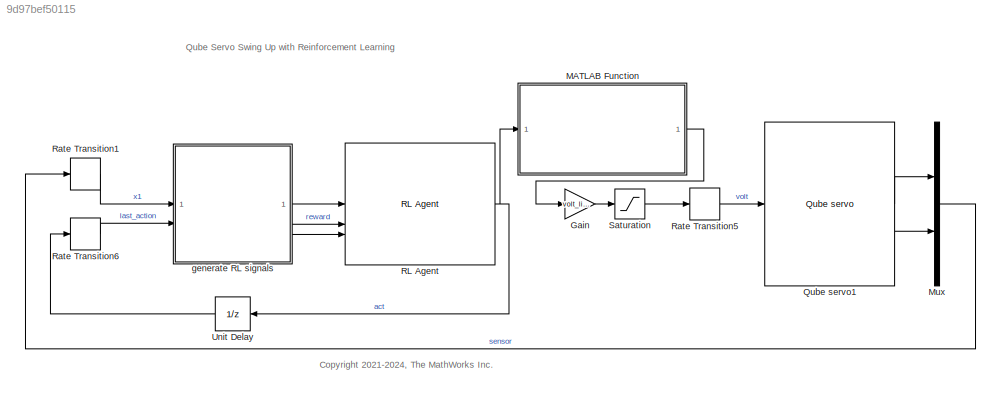
MODEL slx_9d97bef50115
KIND model
CONFIG AbsTol = 1e-3
CONFIG EnableMultiTasking = off
CONFIG FixedStep = auto
CONFIG MaxStep = auto
CONFIG MinStep = auto
CONFIG RelTol = 1e-3
CONFIG SampleTimeConstraint = Unconstrained
CONFIG SolverName = ode23t
CONFIG StartTime = 0.0
CONFIG StopTime = 10.0
BLOCK [Gain] Gain
  Gain = volt_limit
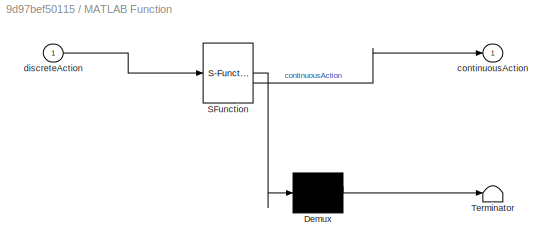
BLOCK [SubSystem] MATLAB Function
  ErrorFcn = Stateflow.Translate.translate
  PermitHierarchicalResolution = ExplicitOnly
  SFBlockType = MATLAB Function
  TreatAsAtomicUnit = on
BLOCK [Demux] MATLAB Function/ Demux 
  Outputs = 1
BLOCK [S-Function] MATLAB Function/ SFunction 
  EnableBusSupport = off
  FunctionName = sf_sfun
  PortCounts = [1 2]
  SFcnIsStateOwnerBlock = off
  SFunctionDeploymentMode = off
  Tag = Stateflow S-Function 1
BLOCK [Terminator] MATLAB Function/ Terminator 
BLOCK [Outport] MATLAB Function/continuousAction
BLOCK [Inport] MATLAB Function/discreteAction
BLOCK [Mux] Mux
  DisplayOption = bar
  Inputs = 2
BLOCK [Reference] Qube servo1  REF=QuanserQube/Qube servo
  SourceBlock = QuanserQube/Qube servo
  SourceType = Qube servo 2 model by Simscape
BLOCK [Reference] RL Agent  REF=rllib/RL Agent
  SourceBlock = rllib/RL Agent
  SourceType = RL Agent
BLOCK [RateTransition] Rate Transition1
  OutPortSampleTime = Ts
BLOCK [RateTransition] Rate Transition5
BLOCK [RateTransition] Rate Transition6
  OutPortSampleTime = Ts
BLOCK [Saturate] Saturation
  LowerLimit = -volt_limit
  UpperLimit = volt_limit
BLOCK [UnitDelay] Unit Delay
  HasFrameUpgradeWarning = on
  SampleTime = -1
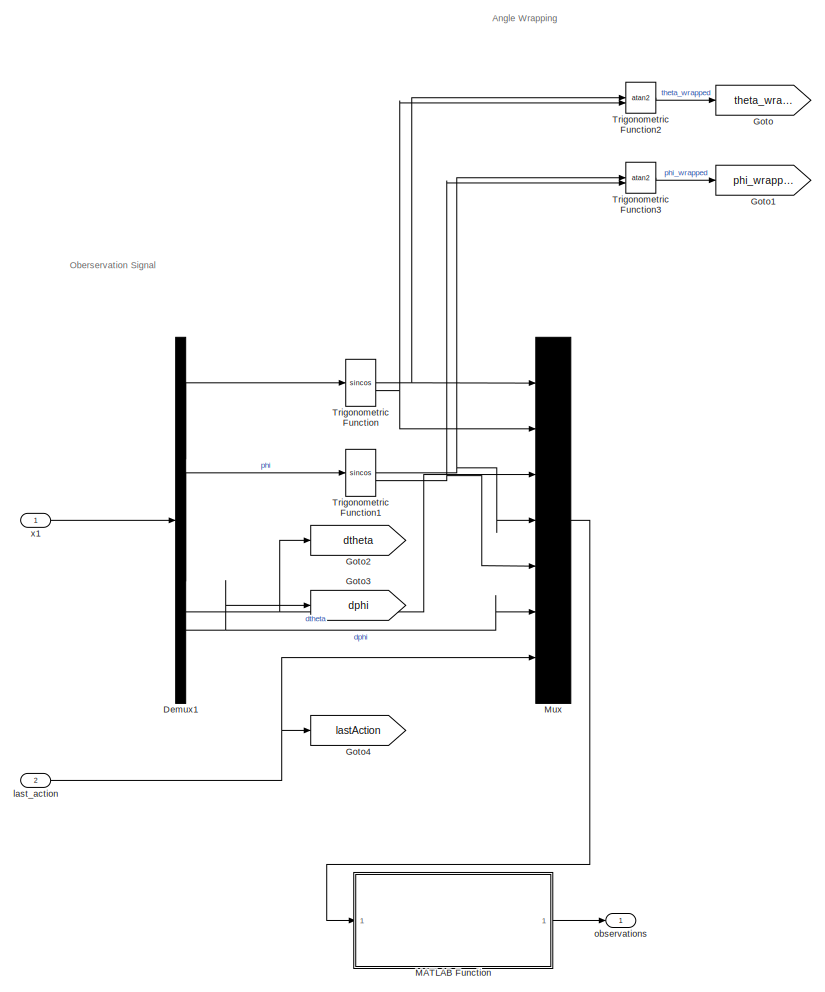
[diagram: generate RL signals - part 1/2, left side, full height]
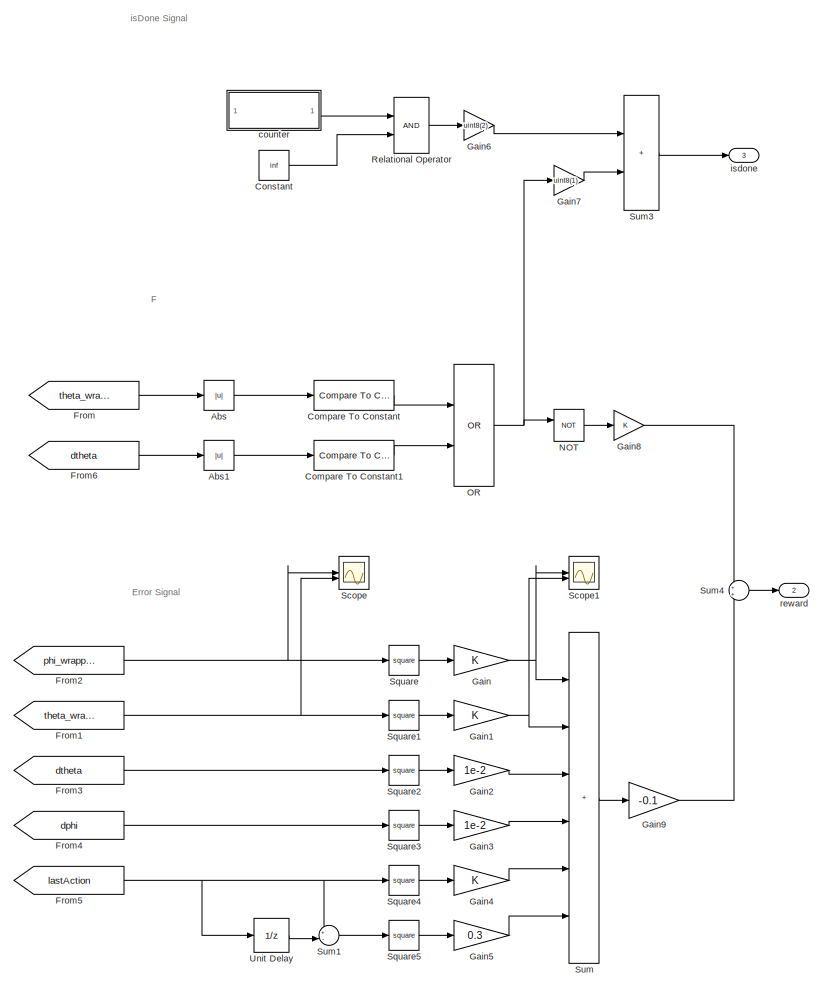
[diagram: generate RL signals - part 2/2, right side, full height]
BLOCK [SubSystem] generate RL signals
BLOCK [Abs] generate RL signals/Abs
  SaturateOnIntegerOverflow = off
BLOCK [Abs] generate RL signals/Abs1
  SaturateOnIntegerOverflow = off
BLOCK [Reference] generate RL signals/Compare To Constant  REF=simulink/Logic and Bit
Operations/Compare
To Constant
  SourceBlock = simulink/Logic and Bit\nOperations/Compare\nTo Constant
  SourceType = Compare To Constant
BLOCK [Reference] generate RL signals/Compare To Constant1  REF=simulink/Logic and Bit
Operations/Compare
To Constant
  SourceBlock = simulink/Logic and Bit\nOperations/Compare\nTo Constant
  SourceType = Compare To Constant
BLOCK [Constant] generate RL signals/Constant
  Value = inf
BLOCK [Demux] generate RL signals/Demux1
BLOCK [From] generate RL signals/From
  GotoTag = theta_wrapped
BLOCK [From] generate RL signals/From1
  GotoTag = theta_wrapped
BLOCK [From] generate RL signals/From2
  GotoTag = phi_wrapped
BLOCK [From] generate RL signals/From3
  GotoTag = dtheta
BLOCK [From] generate RL signals/From4
  GotoTag = dphi
BLOCK [From] generate RL signals/From5
  GotoTag = lastAction
BLOCK [From] generate RL signals/From6
  GotoTag = dtheta
BLOCK [Gain] generate RL signals/Gain
BLOCK [Gain] generate RL signals/Gain1
BLOCK [Gain] generate RL signals/Gain2
  Gain = 1e-2
BLOCK [Gain] generate RL signals/Gain3
  Gain = 1e-2
BLOCK [Gain] generate RL signals/Gain4
BLOCK [Gain] generate RL signals/Gain5
  Gain = 0.3
BLOCK [Gain] generate RL signals/Gain6
  Gain = uint8(2)
  OutDataTypeStr = uint8
BLOCK [Gain] generate RL signals/Gain7
  Gain = uint8(1)
  OutDataTypeStr = uint8
BLOCK [Gain] generate RL signals/Gain8
  OutDataTypeStr = double
BLOCK [Gain] generate RL signals/Gain9
  Gain = -0.1
BLOCK [Goto] generate RL signals/Goto
  GotoTag = theta_wrapped
BLOCK [Goto] generate RL signals/Goto1
  GotoTag = phi_wrapped
BLOCK [Goto] generate RL signals/Goto2
  GotoTag = dtheta
BLOCK [Goto] generate RL signals/Goto3
  GotoTag = dphi
BLOCK [Goto] generate RL signals/Goto4
  GotoTag = lastAction
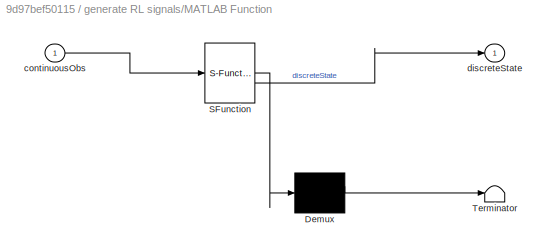
BLOCK [SubSystem] generate RL signals/MATLAB Function
  ErrorFcn = Stateflow.Translate.translate
  PermitHierarchicalResolution = ExplicitOnly
  SFBlockType = MATLAB Function
  TreatAsAtomicUnit = on
BLOCK [Demux] generate RL signals/MATLAB Function/ Demux 
  Outputs = 1
BLOCK [S-Function] generate RL signals/MATLAB Function/ SFunction 
  EnableBusSupport = off
  FunctionName = sf_sfun
  PortCounts = [1 2]
  SFcnIsStateOwnerBlock = off
  SFunctionDeploymentMode = off
  Tag = Stateflow S-Function 2
BLOCK [Terminator] generate RL signals/MATLAB Function/ Terminator 
BLOCK [Inport] generate RL signals/MATLAB Function/continuousObs
BLOCK [Outport] generate RL signals/MATLAB Function/discreteState
BLOCK [Mux] generate RL signals/Mux
  DisplayOption = bar
  Inputs = 7
BLOCK [Logic] generate RL signals/NOT
  AllPortsSameDT = off
  IconShape = distinctive
  Operator = NOT
  OutDataTypeStr = boolean
BLOCK [Logic] generate RL signals/OR
  AllPortsSameDT = off
  IconShape = distinctive
  Operator = OR
  OutDataTypeStr = boolean
BLOCK [RelationalOperator] generate RL signals/Relational Operator
  InputSameDT = off
  OutDataTypeStr = boolean
  RndMeth = Simplest
BLOCK [Scope] generate RL signals/Scope
  ActiveDisplayYMaximum = 0.30688
  ActiveDisplayYMinimum = -0.2557
  Floating = off
  GraphicalSettings = {"GraphicalSettings":{"LegacySettings":true,"Style":{"Style":{"AxesColor":"[0 0 0]","ChannelNames":[""],"ColorOrder":"[1 1 0.0666666666666667;0.0745098039215686 0.623529411764706 1;1 0.411764705882353 0.16078431372549;0.392156862745098 0.831372549019608 0.0745098039215686;0.717647058823529 0.274509803921569 1;0.0588235294117647 1 1;1 0.0745098039215686 0.650980392156863]","CurrentConfiguration":"e...<+403ch>
  MultipleDisplayCache = [{"MaxYLimMag":0.30688,"MaxYLimReal":0.30688,"MinYLimMag":0,"MinYLimReal":-0.2557,"PlotAsMagnitudePhase":false,"ShowGrid":true,"ShowLegend":true,"Title":"%<SignalLabel>","YLabel":""}]
  NumInputPorts = 2
  ShowLegend = on
  WasSavedAsWebScope = on
BLOCK [Scope] generate RL signals/Scope1
  ActiveDisplayYMaximum = 35.35621
  ActiveDisplayYMinimum = -3.92812
  DataLoggingVariableName = ScopeData1
  Floating = off
  GraphicalSettings = {"GraphicalSettings":{"LegacySettings":true,"Style":{"Style":{"AxesColor":"[0 0 0]","ChannelNames":[""],"ColorOrder":"[1 0.909803921568627 0.392156862745098;0.149019607843137 0.549019607843137 0.866666666666667;0.96078431372549 0.466666666666667 0.16078431372549;0.286274509803922 0.858823529411765 0.250980392156863;0.752941176470588 0.36078431372549 0.984313725490196;0.423529411764706 0.9568627450...<+479ch>
  MultipleDisplayCache = [{"MaxYLimMag":35.35621,"MaxYLimReal":35.35621,"MinYLimMag":0,"MinYLimReal":-3.92812,"PlotAsMagnitudePhase":false,"ShowGrid":true,"ShowLegend":true,"Title":"%<SignalLabel>","YLabel":""}]
  NumInputPorts = 2
  ShowLegend = on
  WasSavedAsWebScope = on
BLOCK [Math] generate RL signals/Square
  Operator = square
BLOCK [Math] generate RL signals/Square1
  Operator = square
BLOCK [Math] generate RL signals/Square2
  Operator = square
BLOCK [Math] generate RL signals/Square3
  Operator = square
BLOCK [Math] generate RL signals/Square4
  Operator = square
BLOCK [Math] generate RL signals/Square5
  Operator = square
BLOCK [Sum] generate RL signals/Sum
  IconShape = rectangular
  Inputs = ++++++
BLOCK [Sum] generate RL signals/Sum1
  Inputs = +-|
BLOCK [Sum] generate RL signals/Sum3
  IconShape = rectangular
BLOCK [Sum] generate RL signals/Sum4
BLOCK [Trigonometry] generate RL signals/Trigonometric Function
  Operator = sincos
BLOCK [Trigonometry] generate RL signals/Trigonometric Function1
  Operator = sincos
BLOCK [Trigonometry] generate RL signals/Trigonometric Function2
  Operator = atan2
BLOCK [Trigonometry] generate RL signals/Trigonometric Function3
  Operator = atan2
BLOCK [UnitDelay] generate RL signals/Unit Delay
  HasFrameUpgradeWarning = on
  SampleTime = -1
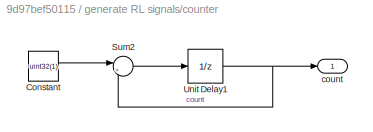
BLOCK [SubSystem] generate RL signals/counter
BLOCK [Constant] generate RL signals/counter/Constant
  Value = uint32(1)
BLOCK [Sum] generate RL signals/counter/Sum2
  AccumDataTypeStr = Inherit: Same as first input
  Inputs = |++
BLOCK [UnitDelay] generate RL signals/counter/Unit Delay1
  HasFrameUpgradeWarning = on
  SampleTime = Ts
BLOCK [Outport] generate RL signals/counter/count
  OutDataTypeStr = uint32
BLOCK [Outport] generate RL signals/isdone
  Port = 3
BLOCK [Inport] generate RL signals/last_action
  Port = 2
BLOCK [Outport] generate RL signals/observations
BLOCK [Outport] generate RL signals/reward
  Port = 2
BLOCK [Inport] generate RL signals/x1
  SampleTime = Ts
ANNOTATION (root): <copyright redacted>
ANNOTATION (root): Qube Servo Swing Up with Reinforcement Learning
ANNOTATION generate RL signals: Angle Wrapping
ANNOTATION generate RL signals: Error Signal
ANNOTATION generate RL signals: F
ANNOTATION generate RL signals: Oberservation Signal
ANNOTATION generate RL signals: isDone Signal
LINE Gain:1 -> Saturation:1
LINE MATLAB Function:1 -> Gain:1
LINE Mux:1 -> Rate Transition1:1
LINE Qube servo1:1 -> Mux:1
LINE Qube servo1:2 -> Mux:2
NET RL Agent:1 -> MATLAB Function:1, Unit Delay:1
LINE Rate Transition1:1 -> generate RL signals:1
LINE Rate Transition5:1 -> Qube servo1:1
LINE Rate Transition6:1 -> generate RL signals:2
LINE Saturation:1 -> Rate Transition5:1
LINE Unit Delay:1 -> Rate Transition6:1
LINE generate RL signals/Abs1:1 -> generate RL signals/Compare To Constant1:1
LINE generate RL signals/Abs:1 -> generate RL signals/Compare To Constant:1
LINE generate RL signals/Compare To Constant1:1 -> generate RL signals/OR:2
LINE generate RL signals/Compare To Constant:1 -> generate RL signals/OR:1
LINE generate RL signals/Constant:1 -> generate RL signals/Relational Operator:2
LINE generate RL signals/Demux1:1 -> generate RL signals/Trigonometric Function:1
LINE generate RL signals/Demux1:2 -> generate RL signals/Trigonometric Function1:1
NET generate RL signals/Demux1:3 -> generate RL signals/Goto2:1, generate RL signals/Mux:3
NET generate RL signals/Demux1:4 -> generate RL signals/Goto3:1, generate RL signals/Mux:6
NET generate RL signals/From1:1 -> generate RL signals/Scope:2, generate RL signals/Square1:1
NET generate RL signals/From2:1 -> generate RL signals/Scope:1, generate RL signals/Square:1
LINE generate RL signals/From3:1 -> generate RL signals/Square2:1
LINE generate RL signals/From4:1 -> generate RL signals/Square3:1
NET generate RL signals/From5:1 -> generate RL signals/Square4:1, generate RL signals/Sum1:1, generate RL signals/Unit Delay:1
LINE generate RL signals/From6:1 -> generate RL signals/Abs1:1
LINE generate RL signals/From:1 -> generate RL signals/Abs:1
NET generate RL signals/Gain1:1 -> generate RL signals/Scope1:2, generate RL signals/Sum:2
LINE generate RL signals/Gain2:1 -> generate RL signals/Sum:3
LINE generate RL signals/Gain3:1 -> generate RL signals/Sum:4
LINE generate RL signals/Gain4:1 -> generate RL signals/Sum:5
LINE generate RL signals/Gain5:1 -> generate RL signals/Sum:6
LINE generate RL signals/Gain6:1 -> generate RL signals/Sum3:1
LINE generate RL signals/Gain7:1 -> generate RL signals/Sum3:2
LINE generate RL signals/Gain8:1 -> generate RL signals/Sum4:1
LINE generate RL signals/Gain9:1 -> generate RL signals/Sum4:2
NET generate RL signals/Gain:1 -> generate RL signals/Scope1:1, generate RL signals/Sum:1
LINE generate RL signals/MATLAB Function:1 -> generate RL signals/observations:1
LINE generate RL signals/Mux:1 -> generate RL signals/MATLAB Function:1
LINE generate RL signals/NOT:1 -> generate RL signals/Gain8:1
NET generate RL signals/OR:1 -> generate RL signals/Gain7:1, generate RL signals/NOT:1
LINE generate RL signals/Relational Operator:1 -> generate RL signals/Gain6:1
LINE generate RL signals/Square1:1 -> generate RL signals/Gain1:1
LINE generate RL signals/Square2:1 -> generate RL signals/Gain2:1
LINE generate RL signals/Square3:1 -> generate RL signals/Gain3:1
LINE generate RL signals/Square4:1 -> generate RL signals/Gain4:1
LINE generate RL signals/Square5:1 -> generate RL signals/Gain5:1
LINE generate RL signals/Square:1 -> generate RL signals/Gain:1
LINE generate RL signals/Sum1:1 -> generate RL signals/Square5:1
LINE generate RL signals/Sum3:1 -> generate RL signals/isdone:1
LINE generate RL signals/Sum4:1 -> generate RL signals/reward:1
LINE generate RL signals/Sum:1 -> generate RL signals/Gain9:1
NET generate RL signals/Trigonometric Function1:1 -> generate RL signals/Mux:4, generate RL signals/Trigonometric Function3:1
NET generate RL signals/Trigonometric Function1:2 -> generate RL signals/Mux:5, generate RL signals/Trigonometric Function3:2
LINE generate RL signals/Trigonometric Function2:1 -> generate RL signals/Goto:1
LINE generate RL signals/Trigonometric Function3:1 -> generate RL signals/Goto1:1
NET generate RL signals/Trigonometric Function:1 -> generate RL signals/Mux:1, generate RL signals/Trigonometric Function2:1
NET generate RL signals/Trigonometric Function:2 -> generate RL signals/Mux:2, generate RL signals/Trigonometric Function2:2
LINE generate RL signals/Unit Delay:1 -> generate RL signals/Sum1:2
LINE generate RL signals/counter/Constant:1 -> generate RL signals/counter/Sum2:1
LINE generate RL signals/counter/Sum2:1 -> generate RL signals/counter/Unit Delay1:1
NET generate RL signals/counter/Unit Delay1:1 -> generate RL signals/counter/Sum2:2, generate RL signals/counter/count:1
LINE generate RL signals/counter:1 -> generate RL signals/Relational Operator:1
NET generate RL signals/last_action:1 -> generate RL signals/Goto4:1, generate RL signals/Mux:7
LINE generate RL signals/x1:1 -> generate RL signals/Demux1:1
LINE generate RL signals:1 -> RL Agent:1
LINE generate RL signals:2 -> RL Agent:2
LINE generate RL signals:3 -> RL Agent:3
note: NET lines group one-source signal fan-out (src -> all destinations, sorted); 1:1 wires keep LINE
CHART generate RL signals/MATLAB Function states=1 transitions=1
  STATE_LABEL 'eML_blk_kernel()'
  STATE_LABEL 'SCRIPT:\nfunction discreteState = discretizeState(continuousObs)\n    % Extract relevant states (theta, phi, dtheta, dphi)\n    theta = continuousObs(1);\n    phi = continuousObs(2);\n    dtheta = continuousObs(3);\n    dphi = continuousObs(4);\n    \n    % Clip angular velocities\n    VelLimit = 10;\n    dtheta = max(min(dtheta, VelLimit), -VelLimit);\n    dphi = max(min(dphi, VelLimit), -VelLimit);\n    \n  ...<+1026ch>'
CHART MATLAB Function states=1 transitions=1
  STATE_LABEL 'eML_blk_kernel()'
  STATE_LABEL 'SCRIPT:\nfunction continuousAction = discretizeAction(discreteAction)\n    actions = linspace(-1.0, 1.0, 7);\n    \n    % Ensure discreteAction is within bounds (handle potential 0 index)\n    discreteAction = max(1, min(5, discreteAction));\n    \n    continuousAction = actions(discreteAction);\nend'
CHART  states=0 transitions=0
CHART  states=0 transitions=0
